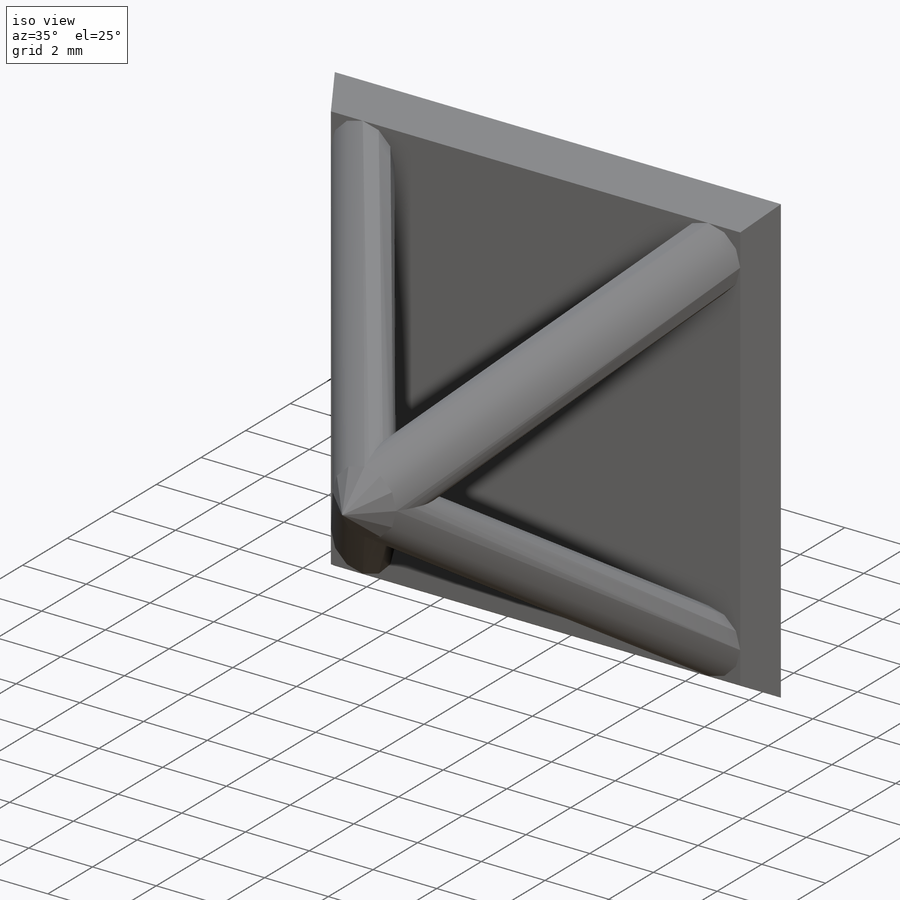
[diagram: iso view]
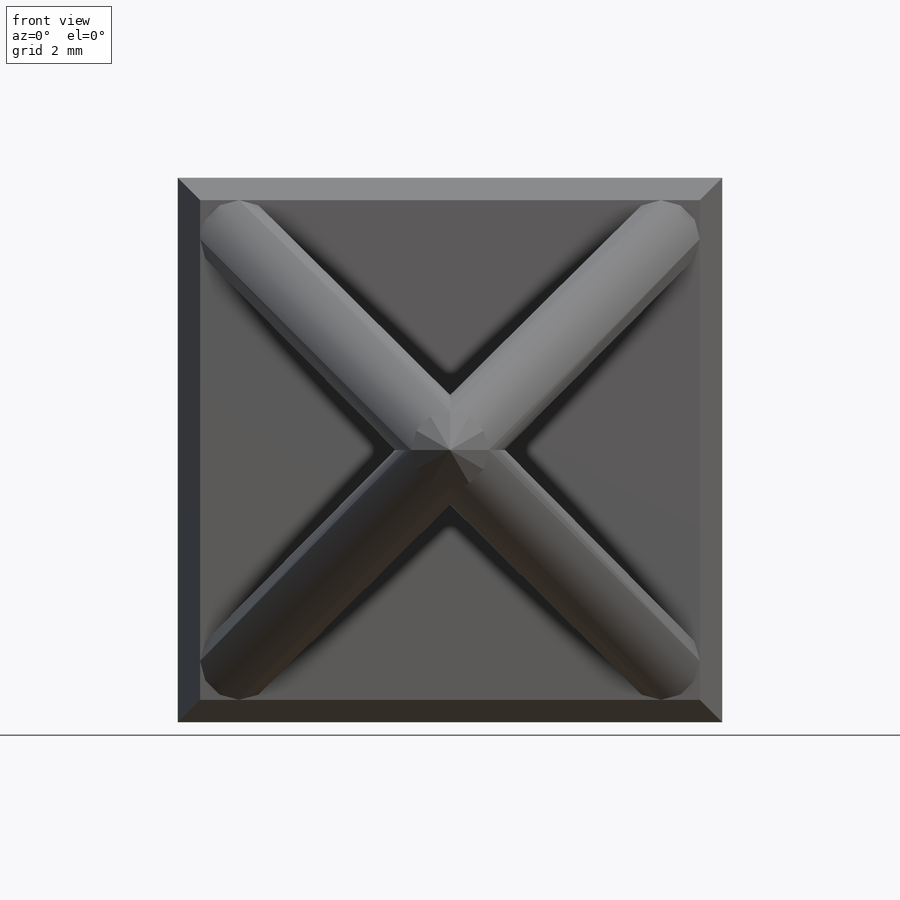
[diagram: front view]
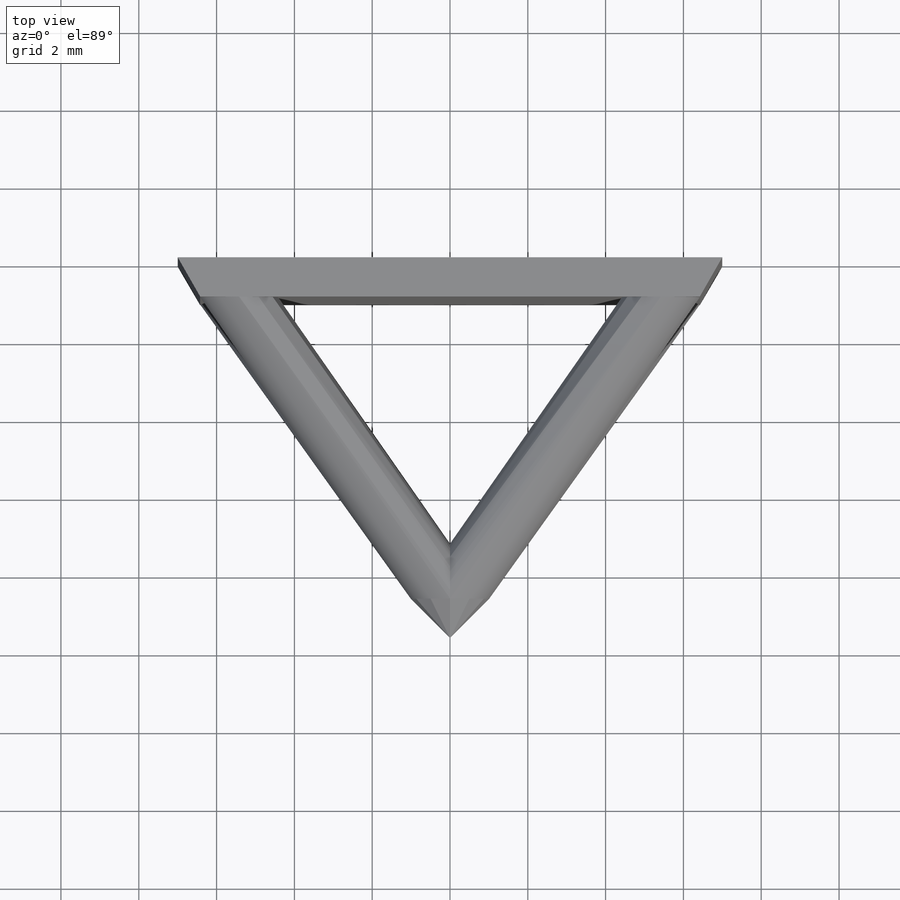
[diagram: top view]
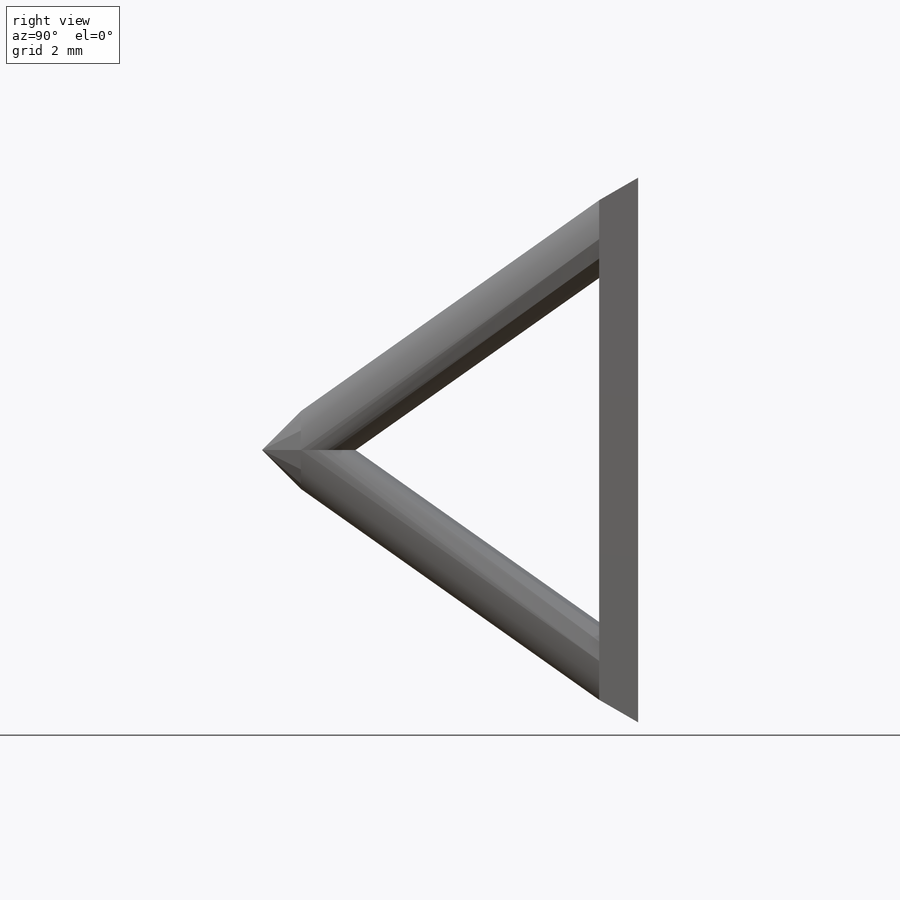
[diagram: right view]
SOLIDWORKS PART (.sldprt)
format: sldprt  version: not decoded by parser v0  size: 208,896 bytes
history: native  units: mm
features: sketch x4, extrude x2, material x1, plane x1, sweep x1, pattern_circular x1 (+12 scaffold rows collapsed)
feature tree (22):
  scaffold x12  (default folders/planes/origin — collapsed)
  material  "Material <not specified>"
  sketch  "Sketch1"  dims[D1=14.0mm D2=14.0mm]
  extrude  "Boss-Extrude1"  Depth=1mm
  sketch  "Sketch2"  dims[D1=2.0mm]
  plane  "Plane1"
  sketch  "Sketch3"  dims[D1=315.0deg]
  sweep  "Sweep1"
  pattern_circular  "CirPattern1"  Count=4 Angle=360deg
  sketch  "Sketch4"
  extrude  "Boss-Extrude2"  Depth=10mm
decode coverage: 6 of 8 modeling features carry decoded parameters
note: suppression state not decoded; provenance and decode notes live in map.json
